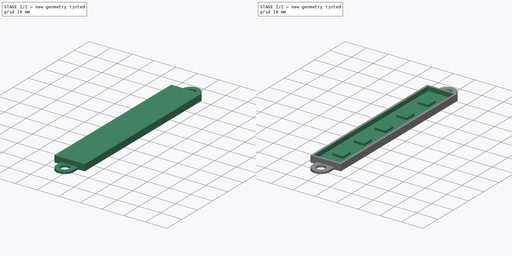
[diagram: build sequence overview — one tinted view per stage of 2, left to right]
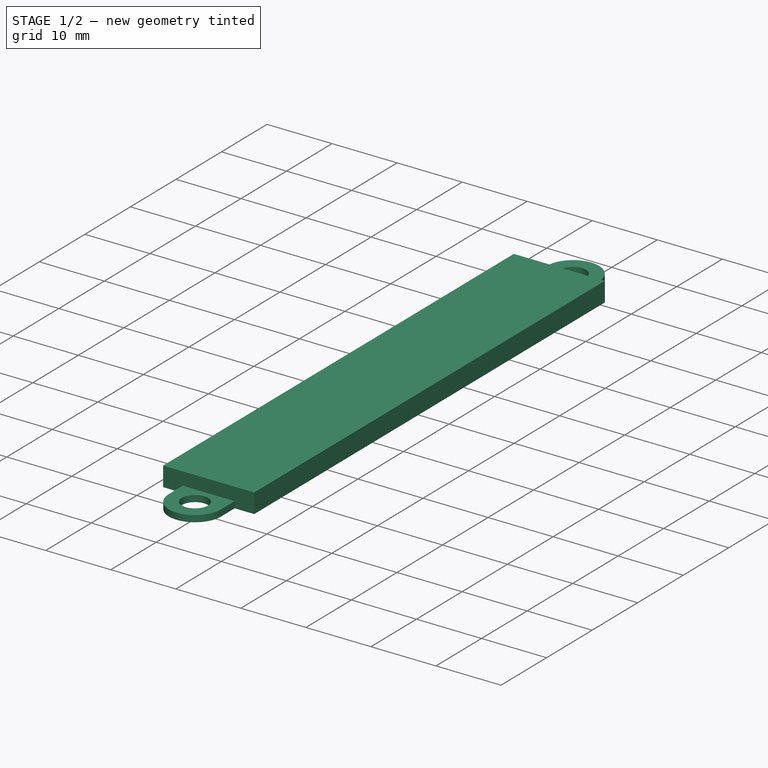
[diagram: stage 1 of 2 — iso view after this stage's code; geometry added in this stage tinted green]
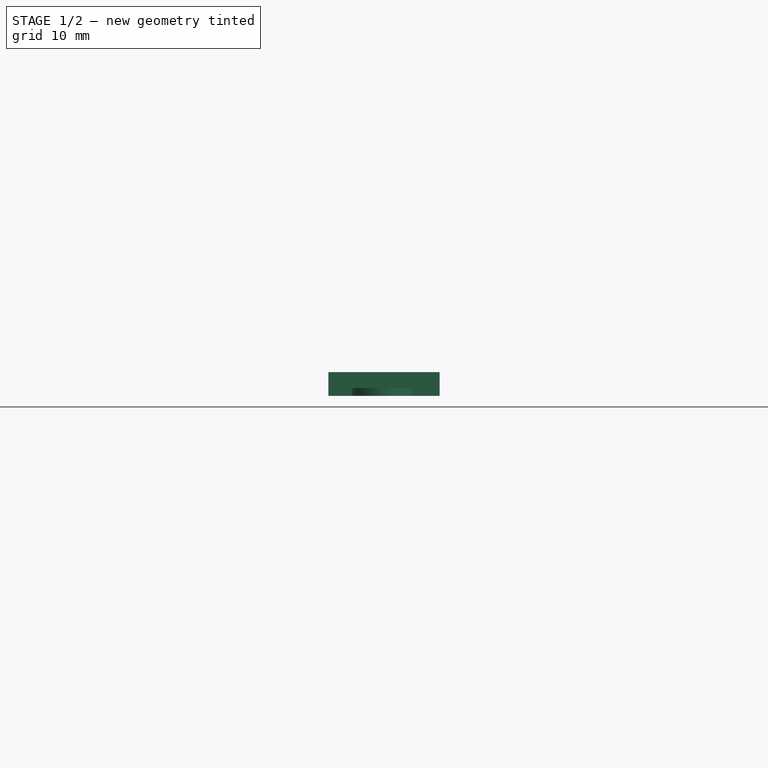
[diagram: stage 1 of 2 — front view after this stage's code; geometry added in this stage tinted green]
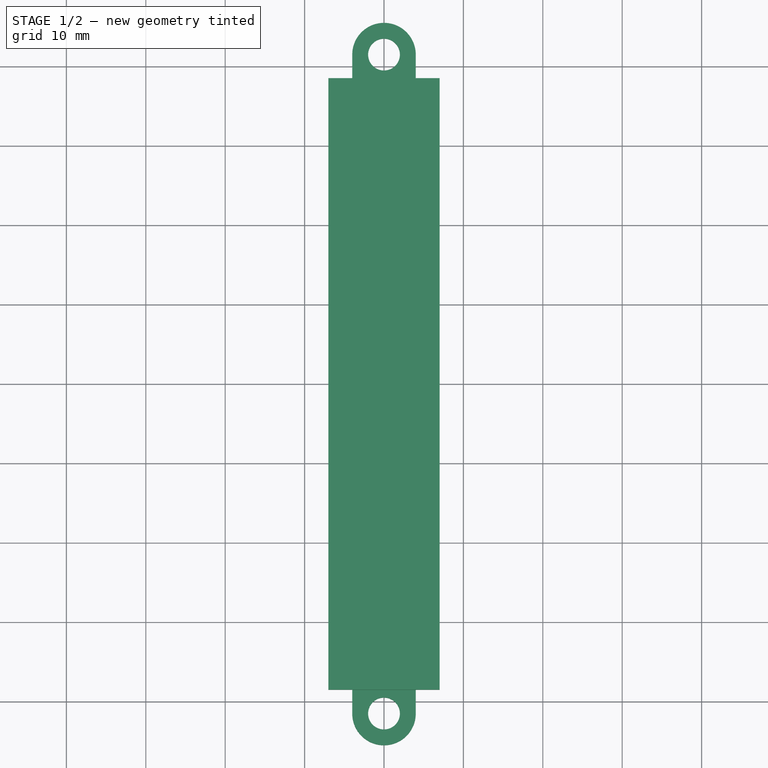
[diagram: stage 1 of 2 — top view after this stage's code; geometry added in this stage tinted green]
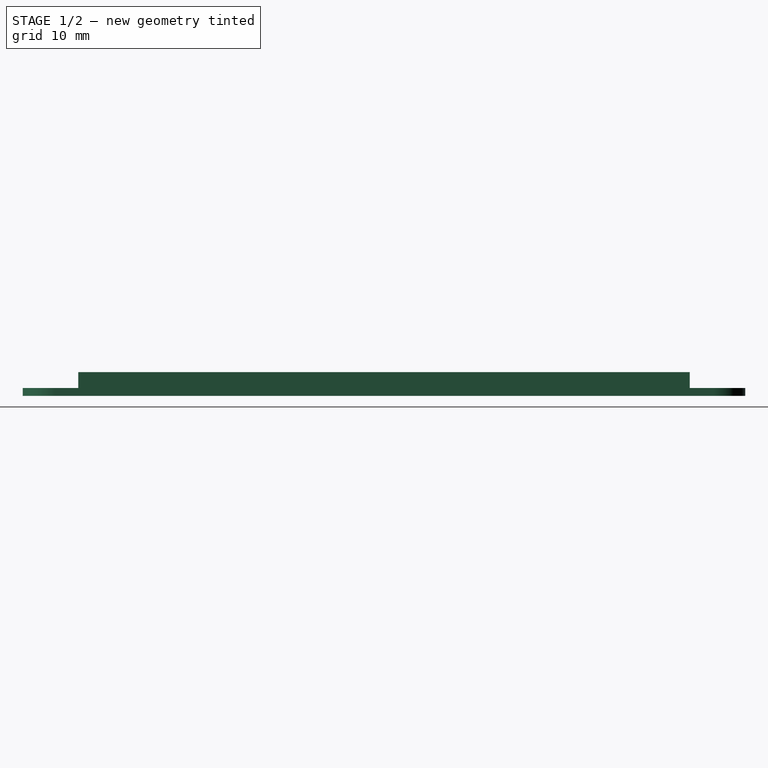
[diagram: stage 1 of 2 — right view after this stage's code; geometry added in this stage tinted green]
FCSTD DOCUMENT  (FreeCAD 0.19R24291 (Git))
Label: Led
License: All rights reserved
LicenseURL: http://en.wikipedia.org/wiki/All_rights_reserved
objects: Sketcher::SketchObject×4, PartDesign::Pad×3, PartDesign::Pocket×1, PartDesign::Body×1, App::Part×1
note: 13 computed .brp shape members not serialized (recipe doc carries the construction recipe); baked Part::Feature solids carry a one-line shape summary decoded from their .brp

FEATURE [Sketcher::SketchObject] Sketch  label="Bottom"
  FullyConstrained = true
  MapMode = 5
  Support = -> [XY_Plane001]
  sketch-geometry (14):
    g0: LineSegment StartX=7 StartY=38.5 StartZ=0 EndX=7 EndY=-38.5 EndZ=0
    g1: LineSegment StartX=-7 StartY=38.5 StartZ=0 EndX=-7 EndY=-38.5 EndZ=0
    g2: LineSegment StartX=-7 StartY=38.5 StartZ=0 EndX=-4 EndY=38.5 EndZ=0
    g3: LineSegment StartX=4 StartY=38.5 StartZ=0 EndX=7 EndY=38.5 EndZ=0
    g4: LineSegment StartX=-7 StartY=-38.5 StartZ=0 EndX=-4 EndY=-38.5 EndZ=0
    g5: LineSegment StartX=7 StartY=-38.5 StartZ=0 EndX=4 EndY=-38.5 EndZ=0
    g6: LineSegment StartX=-4 StartY=41.5 StartZ=0 EndX=-4 EndY=38.5 EndZ=0
    g7: LineSegment StartX=4 StartY=41.5 StartZ=0 EndX=4 EndY=38.5 EndZ=0
    g8: LineSegment StartX=-4 StartY=-38.5 StartZ=0 EndX=-4 EndY=-41.5 EndZ=0
    g9: LineSegment StartX=4 StartY=-38.5 StartZ=0 EndX=4 EndY=-41.5 EndZ=0
    g10: ArcOfCircle CenterX=3e-16 CenterY=41.5 CenterZ=0 NormalX=0 NormalY=0 NormalZ=1 AngleXU=0 Radius=4 StartAngle=6.28318 EndAngle=9.42478
    g11: ArcOfCircle CenterX=1e-16 CenterY=-41.5 CenterZ=0 NormalX=0 NormalY=0 NormalZ=1 AngleXU=0 Radius=4 StartAngle=3.14159 EndAngle=6.28319
    g12: Circle CenterX=1e-16 CenterY=-41.5 CenterZ=0 NormalX=0 NormalY=0 NormalZ=1 AngleXU=0 Radius=2
    g13: Circle CenterX=3e-16 CenterY=41.5 CenterZ=0 NormalX=0 NormalY=0 NormalZ=1 AngleXU=0 Radius=2
  constraints (39):
    c: Distance(g0) = 77
    c: Symmetric(g0,g0,g-1)
    c: Symmetric(g1,g0,g-1)
    c: Symmetric(g0,g1,g-1)
    c: Horizontal(g2)
    c: Coincident(g2,g1)
    c: Horizontal(g3)
    c: Coincident(g3,g0)
    c: Horizontal(g4)
    c: Coincident(g4,g1)
    c: Horizontal(g5)
    c: Coincident(g5,g0)
    c: Vertical(g6)
    c: Coincident(g6,g2)
    c: Vertical(g7)
    c: Coincident(g7,g3)
    c: Vertical(g9)
    c: Vertical(g8)
    c: Coincident(g8,g4)
    c: Coincident(g9,g5)
    c: Equal(g2,g3)
    c: Equal(g4,g5)
    c: Equal(g6,g7)
    c: Equal(g6,g8)
    c: Equal(g7,g9)
    c: Equal(g3,g5)
    c: Distance(g7) = 3
    c: Distance(g5) = 3
    c: Distance(g7,g6) = 8
    c: Coincident(g10,g7)
    c: Coincident(g10,g6)
    c: Tangent(g10,g6)
    c: Coincident(g11,g9)
    c: Coincident(g11,g8)
    c: Tangent(g11,g9)
    c: Coincident(g12,g11)
    c: Radius(g12) = 2
    c: Coincident(g13,g10)
    c: Radius(g13) = 2
FEATURE [Sketcher::SketchObject] Sketch001  label="Box"
  FullyConstrained = true
  MapMode = 5
  Support = -> [XY_Plane001]
  sketch-geometry (4):
    g0: LineSegment StartX=-7 StartY=38.5 StartZ=0 EndX=7 EndY=38.5 EndZ=0
    g1: LineSegment StartX=7 StartY=38.5 StartZ=0 EndX=7 EndY=-38.5 EndZ=0
    g2: LineSegment StartX=7 StartY=-38.5 StartZ=0 EndX=-7 EndY=-38.5 EndZ=0
    g3: LineSegment StartX=-7 StartY=-38.5 StartZ=0 EndX=-7 EndY=38.5 EndZ=0
  constraints (11):
    c: Coincident(g0,g1)
    c: Coincident(g1,g2)
    c: Coincident(g2,g3)
    c: Coincident(g3,g0)
    c: Horizontal(g0)
    c: Horizontal(g2)
    c: Vertical(g1)
    c: Vertical(g3)
    c: Distance(g0) = 14
    c: Distance(g1) = 77
    c: Symmetric(g0,g2,g-1)
FEATURE [PartDesign::Pad] Pad  label="PadBottom"
  Direction = (1,1,1)
  Length = 1
  Length2 = 100
  Profile = -> Sketch
  Type = 0
FEATURE [PartDesign::Pad] Pad001  label="PadBox"
  BaseFeature = -> Pad
  Direction = (1,1,1)
  Length = 3
  Length2 = 100
  Offset = 1
  Profile = -> Sketch001
  Type = 0
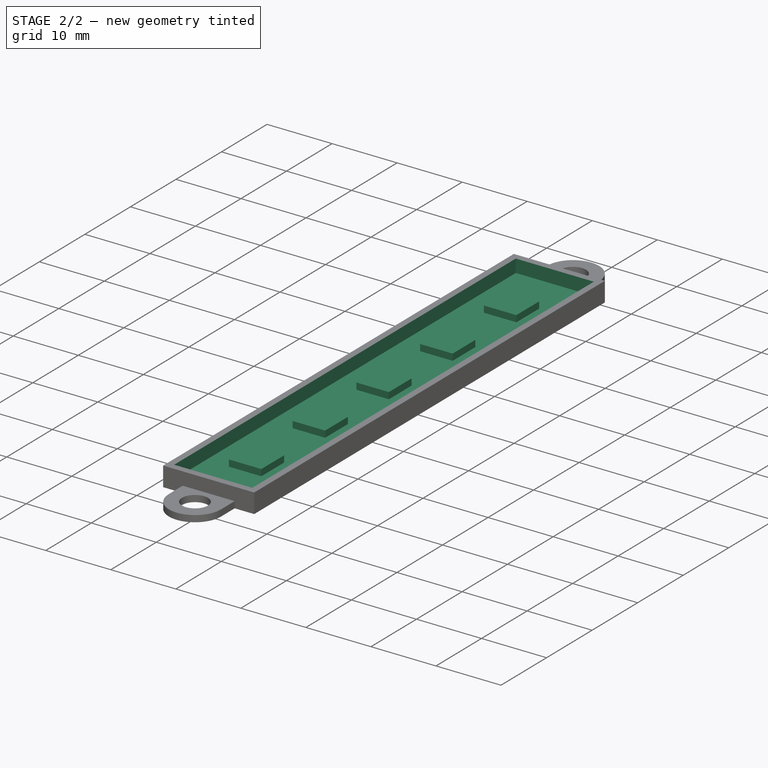
[diagram: stage 2 of 2 — iso view after this stage's code; geometry added in this stage tinted green]
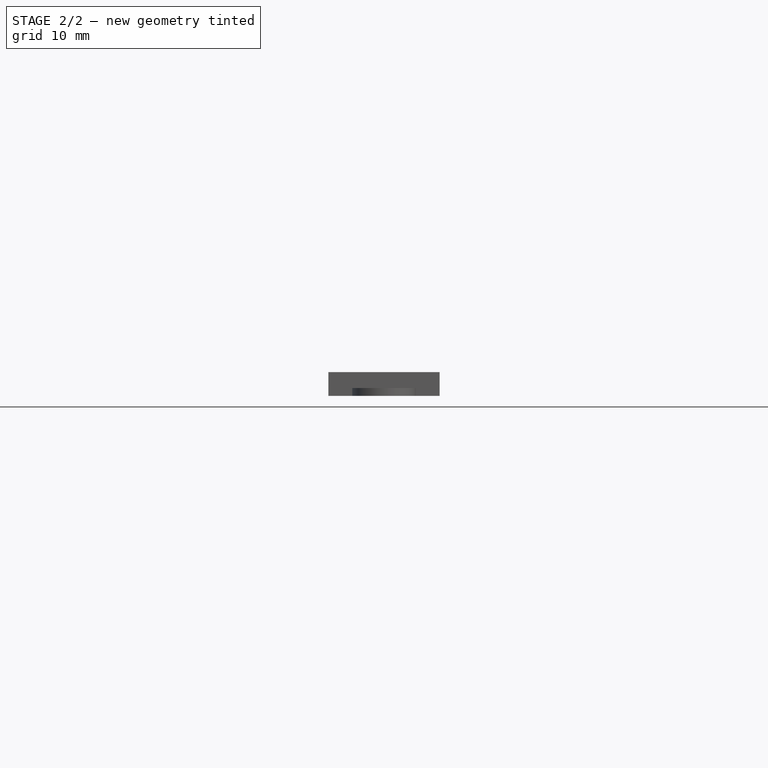
[diagram: stage 2 of 2 — front view after this stage's code; geometry added in this stage tinted green]
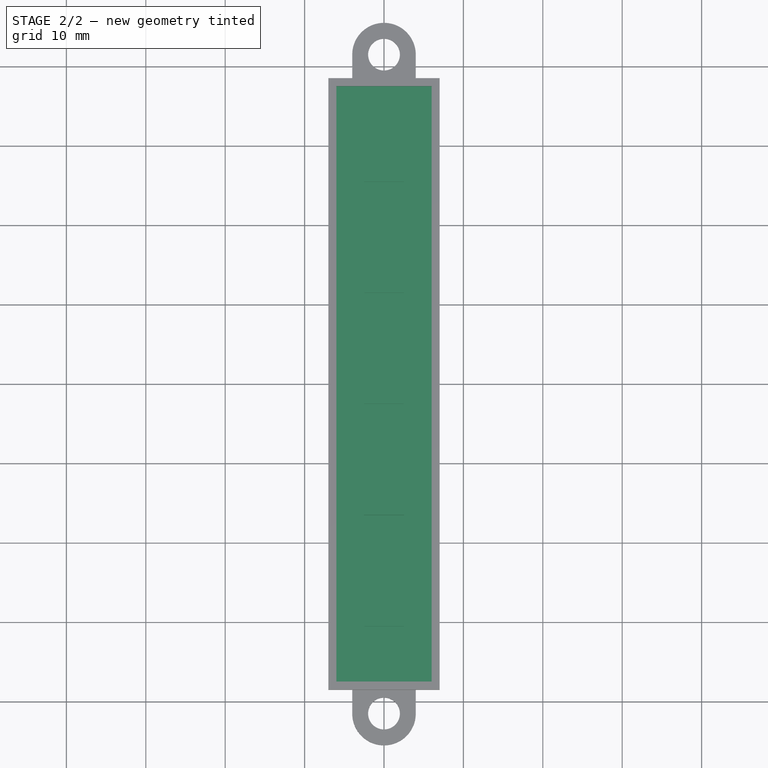
[diagram: stage 2 of 2 — top view after this stage's code; geometry added in this stage tinted green]
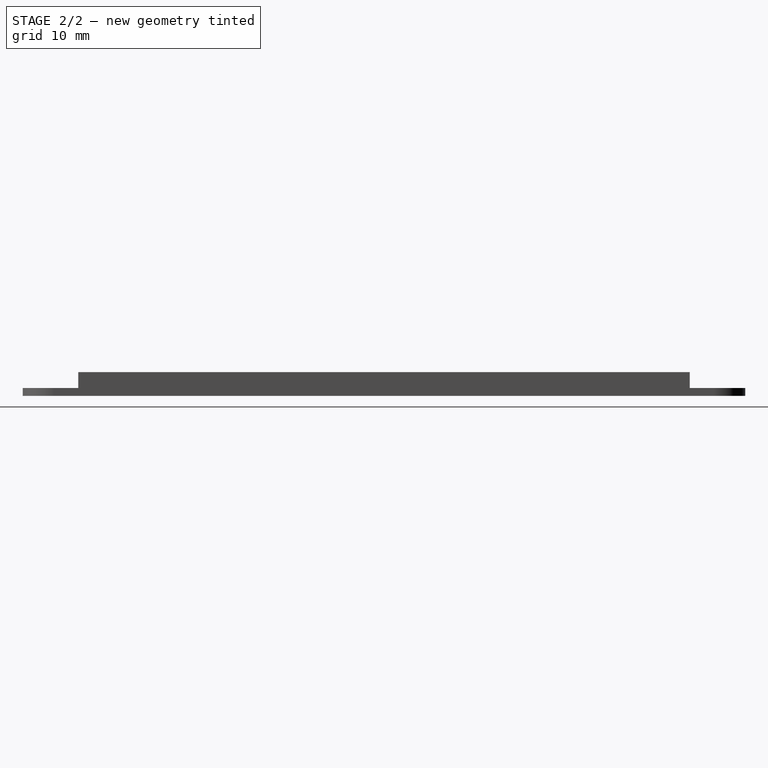
[diagram: stage 2 of 2 — right view after this stage's code; geometry added in this stage tinted green]
FEATURE [Sketcher::SketchObject] Sketch002  label="Inset"
  FullyConstrained = true
  MapMode = 5
  Placement = pos=(0,0,3) rot=(0,0,1;0rad)
  Support = -> [Pad001]
  sketch-geometry (4):
    g0: LineSegment StartX=-6 StartY=37.5 StartZ=0 EndX=6 EndY=37.5 EndZ=0
    g1: LineSegment StartX=6 StartY=37.5 StartZ=0 EndX=6 EndY=-37.5 EndZ=0
    g2: LineSegment StartX=6 StartY=-37.5 StartZ=0 EndX=-6 EndY=-37.5 EndZ=0
    g3: LineSegment StartX=-6 StartY=-37.5 StartZ=0 EndX=-6 EndY=37.5 EndZ=0
  constraints (11):
    c: Coincident(g0,g1)
    c: Coincident(g1,g2)
    c: Coincident(g2,g3)
    c: Coincident(g3,g0)
    c: Horizontal(g0)
    c: Horizontal(g2)
    c: Vertical(g1)
    c: Vertical(g3)
    c: Distance(g1) = 75
    c: Distance(g0) = 12
    c: Symmetric(g0,g1,g-1)
FEATURE [PartDesign::Pocket] Pocket
  BaseFeature = -> Pad001
  Length = 2
  Length2 = 100
  Offset = 2
  Profile = -> Sketch002
  Type = 0
  expr: Length = 2mm
FEATURE [Sketcher::SketchObject] Sketch003  label="Leds"
  FullyConstrained = true
  MapMode = 5
  Support = -> [XY_Plane001]
  sketch-geometry (20):
    g0: LineSegment StartX=-2.5 StartY=30.5 StartZ=0 EndX=2.5 EndY=30.5 EndZ=0
    g1: LineSegment StartX=2.5 StartY=30.5 StartZ=0 EndX=2.5 EndY=25.5 EndZ=0
    g2: LineSegment StartX=2.5 StartY=25.5 StartZ=0 EndX=-2.5 EndY=25.5 EndZ=0
    g3: LineSegment StartX=-2.5 StartY=25.5 StartZ=0 EndX=-2.5 EndY=30.5 EndZ=0
    g4: LineSegment StartX=-2.5 StartY=16.5 StartZ=0 EndX=2.5 EndY=16.5 EndZ=0
    g5: LineSegment StartX=2.5 StartY=16.5 StartZ=0 EndX=2.5 EndY=11.5 EndZ=0
    g6: LineSegment StartX=2.5 StartY=11.5 StartZ=0 EndX=-2.5 EndY=11.5 EndZ=0
    g7: LineSegment StartX=-2.5 StartY=11.5 StartZ=0 EndX=-2.5 EndY=16.5 EndZ=0
    g8: LineSegment StartX=-2.5 StartY=2.5 StartZ=0 EndX=2.5 EndY=2.5 EndZ=0
    g9: LineSegment StartX=2.5 StartY=2.5 StartZ=0 EndX=2.5 EndY=-2.5 EndZ=0
    g10: LineSegment StartX=2.5 StartY=-2.5 StartZ=0 EndX=-2.5 EndY=-2.5 EndZ=0
    g11: LineSegment StartX=-2.5 StartY=-2.5 StartZ=0 EndX=-2.5 EndY=2.5 EndZ=0
    g12: LineSegment StartX=-2.5 StartY=-11.5 StartZ=0 EndX=2.5 EndY=-11.5 EndZ=0
    g13: LineSegment StartX=2.5 StartY=-11.5 StartZ=0 EndX=2.5 EndY=-16.5 EndZ=0
    g14: LineSegment StartX=2.5 StartY=-16.5 StartZ=0 EndX=-2.5 EndY=-16.5 EndZ=0
    g15: LineSegment StartX=-2.5 StartY=-16.5 StartZ=0 EndX=-2.5 EndY=-11.5 EndZ=0
    g16: LineSegment StartX=-2.5 StartY=-25.5 StartZ=0 EndX=2.5 EndY=-25.5 EndZ=0
    g17: LineSegment StartX=2.5 StartY=-25.5 StartZ=0 EndX=2.5 EndY=-30.5 EndZ=0
    g18: LineSegment StartX=2.5 StartY=-30.5 StartZ=0 EndX=-2.5 EndY=-30.5 EndZ=0
    g19: LineSegment StartX=-2.5 StartY=-30.5 StartZ=0 EndX=-2.5 EndY=-25.5 EndZ=0
  constraints (54):
    c: Coincident(g0,g1)
    c: Coincident(g1,g2)
    c: Coincident(g2,g3)
    c: Coincident(g3,g0)
    c: Horizontal(g0)
    c: Vertical(g1)
    c: Vertical(g3)
    c: Distance(g0) = 5
    c: Distance(g1) = 5
    c: Coincident(g4,g5)
    c: Coincident(g5,g6)
    c: Coincident(g6,g7)
    c: Coincident(g7,g4)
    c: Horizontal(g6)
    c: Vertical(g5)
    c: Vertical(g7)
    c: Equal(g0,g4)
    c: Equal(g5,g4)
    c: Symmetric(g4,g4,g-2)
    c: Symmetric(g2,g1,g-2)
    c: Distance(g2,g4) = 9
    c: Coincident(g8,g9)
    c: Coincident(g9,g10)
    c: Coincident(g10,g11)
    c: Coincident(g11,g8)
    c: Horizontal(g8)
    c: Vertical(g9)
    c: Vertical(g11)
    c: Symmetric(g10,g9,g-2)
    c: Equal(g4,g8)
    c: Equal(g9,g8)
    c: Distance(g6,g8) = 9
    c: Coincident(g12,g13)
    c: Coincident(g13,g14)
    c: Coincident(g14,g15)
    c: Coincident(g15,g12)
    c: Horizontal(g12)
    c: Vertical(g13)
    c: Vertical(g15)
    c: Coincident(g16,g17)
    c: Coincident(g17,g18)
    c: Coincident(g18,g19)
    c: Coincident(g19,g16)
    c: Horizontal(g16)
    c: Vertical(g17)
    c: Vertical(g19)
    c: Symmetric(g14,g13,g-2)
    c: Symmetric(g18,g17,g-2)
    c: Equal(g12,g10)
    c: Equal(g13,g9)
    c: Equal(g17,g13)
    c: Symmetric(g0,g18,g-1)
    c: Distance(g12,g10) = 9
    c: Distance(g13,g16) = 9
FEATURE [PartDesign::Pad] Pad002  label="PadLeds"
  BaseFeature = -> Pocket
  Direction = (1,1,1)
  Length = 2
  Length2 = 100
  Offset = 2
  Profile = -> Sketch003
  Type = 0
FEATURE [PartDesign::Body] Body
  Group = -> [Sketch,Sketch001,Pad,Pad001,Sketch002,Pocket,Sketch003,Pad002]
  Origin = -> Origin001
  Tip = -> Pad002
FEATURE [App::Part] Part
  Group = -> [Body]
  Origin = -> Origin
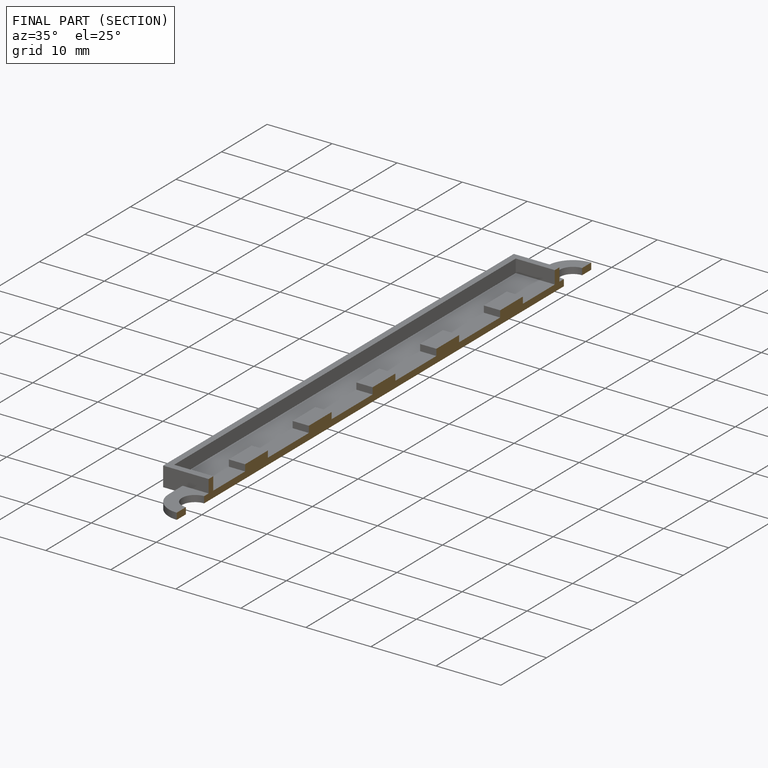
[diagram: finished part — half-section view (interior)]
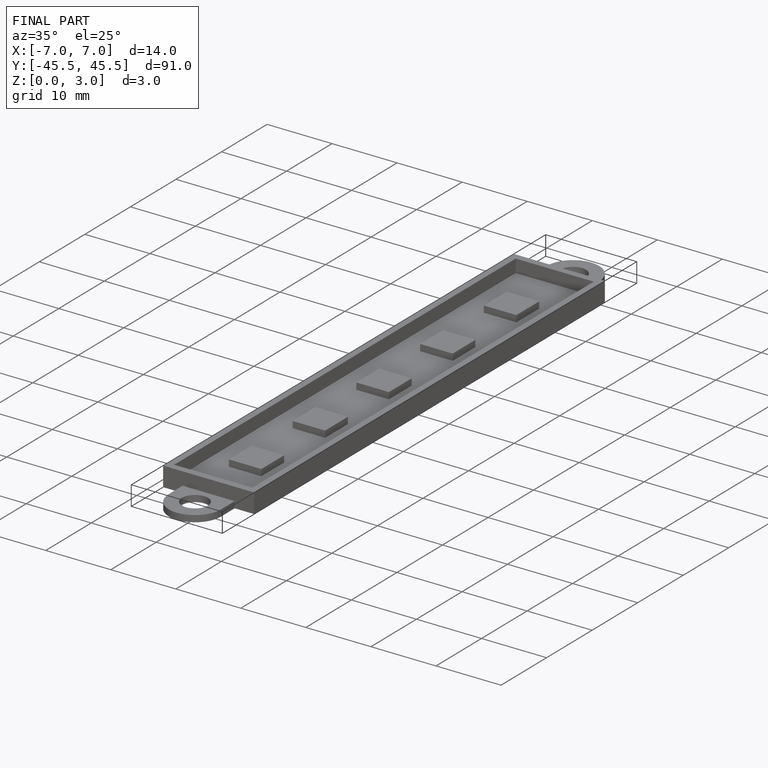
[diagram: finished part — iso view with bounding-box wireframe]
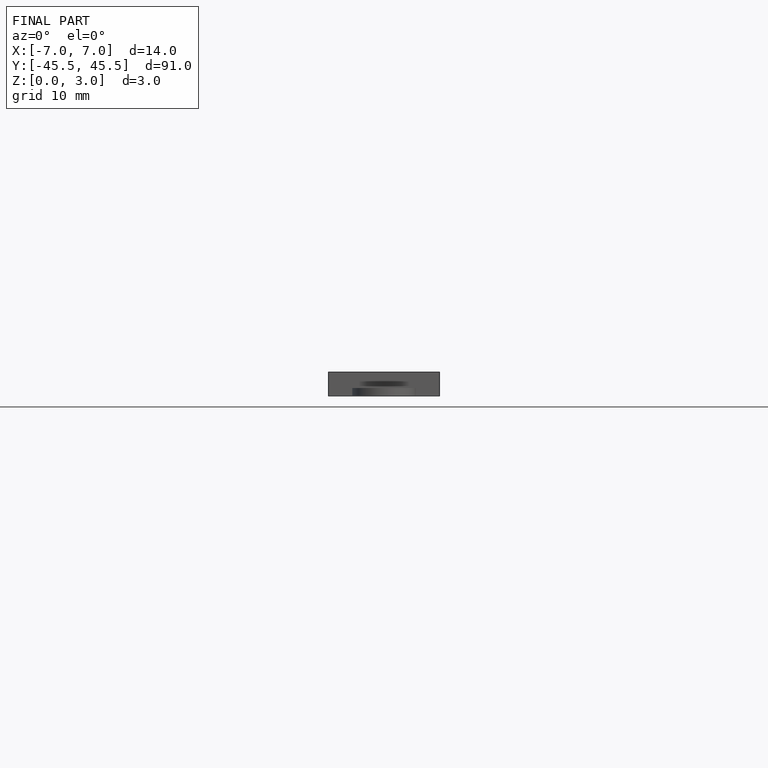
[diagram: finished part — front view with bounding-box wireframe]
